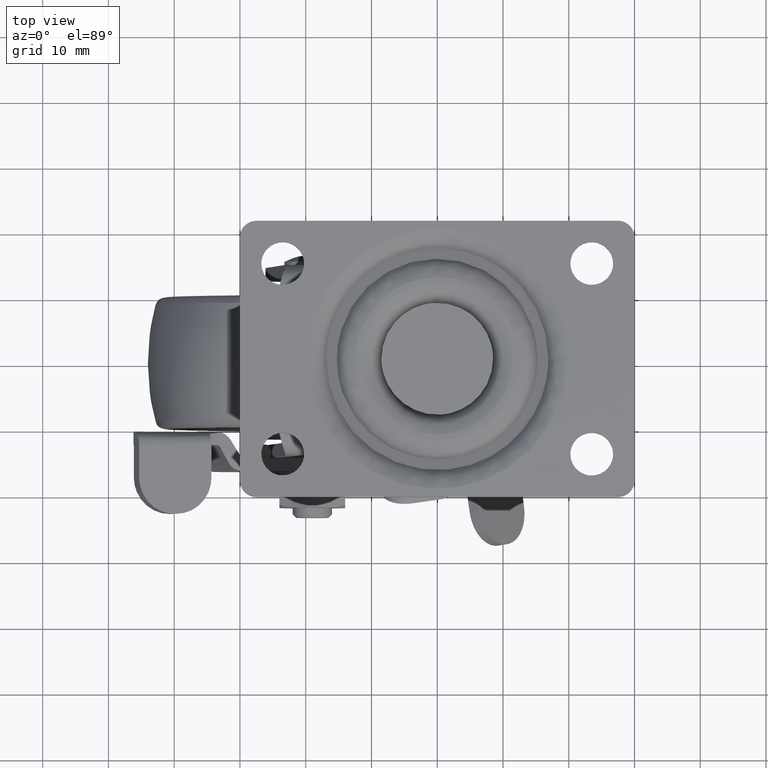
[diagram: clean part render]
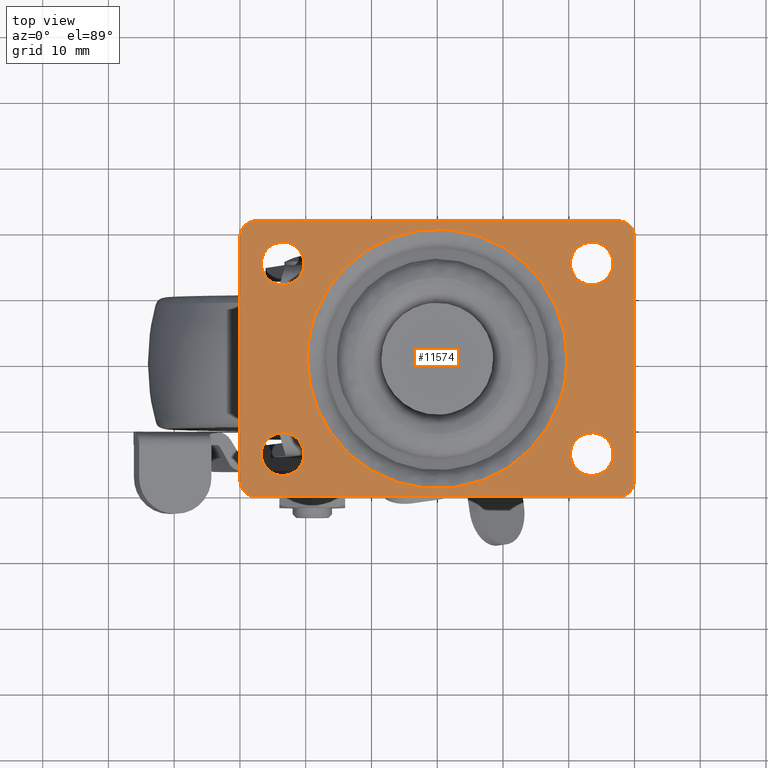
[diagram: same view with one face highlighted and labeled with its STEP entity id]
A machine part, top view. The second image highlights one B-rep face of the part: STEP entity #11574.
In plain terms, the highlighted face is a freeform B-spline surface patch.
Its self-contained STEP definition (entity closure, byte-faithful):
#9707=CARTESIAN_POINT('',(-23.698414753694671,11.256061905141561,-1.075529E-016));
#9708=VERTEX_POINT('',#9707);
#9709=CARTESIAN_POINT('',(-20.250007000000000,14.500000000000000,0.0));
#9710=VERTEX_POINT('',#9709);
#9711=CARTESIAN_POINT('',(-23.698414753694664,11.256061905141562,0.0));
#9712=CARTESIAN_POINT('',(-23.599303480823902,11.250000000000002,0.0));
#9713=CARTESIAN_POINT('',(-23.500007000000000,11.250000000000000,0.0));
#9714=CARTESIAN_POINT('',(-20.250007000000007,11.250000000000000,0.0));
#9715=CARTESIAN_POINT('',(-20.250007000000000,14.500000000000000,0.0));
#9723=(BOUNDED_CURVE()B_SPLINE_CURVE(2,(#9711,#9712,#9713,#9714,#9715),.UNSPECIFIED.,.F.,.U.)B_SPLINE_CURVE_WITH_KNOTS((3,2,3),(0.239332962230991,0.250000000000000,0.500000000000000),.UNSPECIFIED.)CURVE()GEOMETRIC_REPRESENTATION_ITEM()RATIONAL_B_SPLINE_CURVE((0.976072041649675,0.987502787890521,1.0,0.707106781186547,1.0))REPRESENTATION_ITEM(''));
#9724=EDGE_CURVE('',#9708,#9710,#9723,.T.);
#9726=CARTESIAN_POINT('',(-23.301599246305329,17.743938094858450,-1.075529E-016));
#9727=VERTEX_POINT('',#9726);
#9728=CARTESIAN_POINT('',(-20.250007000000000,14.500000000000000,0.0));
#9729=CARTESIAN_POINT('',(-20.250007000000000,17.557294717248642,0.0));
#9730=CARTESIAN_POINT('',(-23.301599246305333,17.743938094858443,0.0));
#9738=(BOUNDED_CURVE()B_SPLINE_CURVE(2,(#9728,#9729,#9730),.UNSPECIFIED.,.F.,.U.)B_SPLINE_CURVE_WITH_KNOTS((3,3),(0.500000000000000,0.739332962230990),.UNSPECIFIED.)CURVE()GEOMETRIC_REPRESENTATION_ITEM()RATIONAL_B_SPLINE_CURVE((1.0,0.719603993296027,0.976072041649674))REPRESENTATION_ITEM(''));
#9739=EDGE_CURVE('',#9710,#9727,#9738,.T.);
#9806=CARTESIAN_POINT('',(-26.750007000000000,14.500000000000000,0.0));
#9807=VERTEX_POINT('',#9806);
#9808=CARTESIAN_POINT('',(-26.750007000000000,14.500000000000000,0.0));
#9809=CARTESIAN_POINT('',(-26.750007000000000,11.442705282751366,0.0));
#9810=CARTESIAN_POINT('',(-23.698414753694671,11.256061905141557,0.0));
#9818=(BOUNDED_CURVE()B_SPLINE_CURVE(2,(#9808,#9809,#9810),.UNSPECIFIED.,.F.,.U.)B_SPLINE_CURVE_WITH_KNOTS((3,3),(0.0,0.239332962230990),.UNSPECIFIED.)CURVE()GEOMETRIC_REPRESENTATION_ITEM()RATIONAL_B_SPLINE_CURVE((1.0,0.719603993296027,0.976072041649674))REPRESENTATION_ITEM(''));
#9819=EDGE_CURVE('',#9807,#9708,#9818,.T.);
#9853=CARTESIAN_POINT('',(-23.301599246305329,17.743938094858454,0.0));
#9854=CARTESIAN_POINT('',(-23.400710519176098,17.750000000000007,0.0));
#9855=CARTESIAN_POINT('',(-23.500007000000000,17.750000000000000,0.0));
#9856=CARTESIAN_POINT('',(-26.750006999999997,17.750000000000004,0.0));
#9857=CARTESIAN_POINT('',(-26.750007000000000,14.500000000000000,0.0));
#9865=(BOUNDED_CURVE()B_SPLINE_CURVE(2,(#9853,#9854,#9855,#9856,#9857),.UNSPECIFIED.,.F.,.U.)B_SPLINE_CURVE_WITH_KNOTS((3,2,3),(0.739332962230991,0.750000000000000,1.0),.UNSPECIFIED.)CURVE()GEOMETRIC_REPRESENTATION_ITEM()RATIONAL_B_SPLINE_CURVE((0.976072041649674,0.987502787890521,1.0,0.707106781186547,1.0))REPRESENTATION_ITEM(''));
#9866=EDGE_CURVE('',#9727,#9807,#9865,.T.);
#9889=CARTESIAN_POINT('',(23.301585246305329,11.256061905141561,-1.075529E-016));
#9890=VERTEX_POINT('',#9889);
#9891=CARTESIAN_POINT('',(26.749993000000000,14.500000000000000,0.0));
#9892=VERTEX_POINT('',#9891);
#9893=CARTESIAN_POINT('',(23.301585246305322,11.256061905141557,0.0));
#9894=CARTESIAN_POINT('',(23.400696519176101,11.250000000000004,0.0));
#9895=CARTESIAN_POINT('',(23.499993000000000,11.250000000000000,0.0));
#9896=CARTESIAN_POINT('',(26.749993000000003,11.250000000000000,0.0));
#9897=CARTESIAN_POINT('',(26.749993000000000,14.500000000000000,0.0));
#9905=(BOUNDED_CURVE()B_SPLINE_CURVE(2,(#9893,#9894,#9895,#9896,#9897),.UNSPECIFIED.,.F.,.U.)B_SPLINE_CURVE_WITH_KNOTS((3,2,3),(0.239332962230990,0.250000000000000,0.500000000000000),.UNSPECIFIED.)CURVE()GEOMETRIC_REPRESENTATION_ITEM()RATIONAL_B_SPLINE_CURVE((0.976072041649674,0.987502787890520,1.0,0.707106781186547,1.0))REPRESENTATION_ITEM(''));
#9906=EDGE_CURVE('',#9890,#9892,#9905,.T.);
#9908=CARTESIAN_POINT('',(23.698400753694671,17.743938094858439,-1.075529E-016));
#9909=VERTEX_POINT('',#9908);
#9910=CARTESIAN_POINT('',(26.749993000000000,14.500000000000000,0.0));
#9911=CARTESIAN_POINT('',(26.749992999999996,17.557294717248645,0.0));
#9912=CARTESIAN_POINT('',(23.698400753694667,17.743938094858446,0.0));
#9920=(BOUNDED_CURVE()B_SPLINE_CURVE(2,(#9910,#9911,#9912),.UNSPECIFIED.,.F.,.U.)B_SPLINE_CURVE_WITH_KNOTS((3,3),(0.500000000000000,0.739332962230991),.UNSPECIFIED.)CURVE()GEOMETRIC_REPRESENTATION_ITEM()RATIONAL_B_SPLINE_CURVE((1.0,0.719603993296027,0.976072041649675))REPRESENTATION_ITEM(''));
#9921=EDGE_CURVE('',#9892,#9909,#9920,.T.);
#9988=CARTESIAN_POINT('',(20.249993000000000,14.500000000000000,0.0));
#9989=VERTEX_POINT('',#9988);
#9990=CARTESIAN_POINT('',(20.249993000000000,14.500000000000000,0.0));
#9991=CARTESIAN_POINT('',(20.249993000000003,11.442705282751362,0.0));
#9992=CARTESIAN_POINT('',(23.301585246305333,11.256061905141562,0.0));
#10000=(BOUNDED_CURVE()B_SPLINE_CURVE(2,(#9990,#9991,#9992),.UNSPECIFIED.,.F.,.U.)B_SPLINE_CURVE_WITH_KNOTS((3,3),(0.0,0.239332962230991),.UNSPECIFIED.)CURVE()GEOMETRIC_REPRESENTATION_ITEM()RATIONAL_B_SPLINE_CURVE((1.0,0.719603993296027,0.976072041649675))REPRESENTATION_ITEM(''));
#10001=EDGE_CURVE('',#9989,#9890,#10000,.T.);
#10035=CARTESIAN_POINT('',(23.698400753694667,17.743938094858443,0.0));
#10036=CARTESIAN_POINT('',(23.599289480823895,17.750000000000004,0.0));
#10037=CARTESIAN_POINT('',(23.499993000000000,17.750000000000000,0.0));
#10038=CARTESIAN_POINT('',(20.249993000000003,17.750000000000004,0.0));
#10039=CARTESIAN_POINT('',(20.249993000000000,14.500000000000000,0.0));
#10047=(BOUNDED_CURVE()B_SPLINE_CURVE(2,(#10035,#10036,#10037,#10038,#10039),.UNSPECIFIED.,.F.,.U.)B_SPLINE_CURVE_WITH_KNOTS((3,2,3),(0.739332962230990,0.750000000000000,1.0),.UNSPECIFIED.)CURVE()GEOMETRIC_REPRESENTATION_ITEM()RATIONAL_B_SPLINE_CURVE((0.976072041649674,0.987502787890520,1.0,0.707106781186547,1.0))REPRESENTATION_ITEM(''));
#10048=EDGE_CURVE('',#9909,#9989,#10047,.T.);
#10223=CARTESIAN_POINT('',(-23.698414753694671,-17.743938094858450,-1.075529E-016));
#10224=VERTEX_POINT('',#10223);
#10225=CARTESIAN_POINT('',(-20.250007000000000,-14.500000000000000,0.0));
#10226=VERTEX_POINT('',#10225);
#10227=CARTESIAN_POINT('',(-23.698414753694671,-17.743938094858454,0.0));
#10228=CARTESIAN_POINT('',(-23.599303480823892,-17.750000000000007,0.0));
#10229=CARTESIAN_POINT('',(-23.500007000000000,-17.750000000000000,0.0));
#10230=CARTESIAN_POINT('',(-20.250007000000007,-17.750000000000004,0.0));
#10231=CARTESIAN_POINT('',(-20.250007000000000,-14.500000000000000,0.0));
#10239=(BOUNDED_CURVE()B_SPLINE_CURVE(2,(#10227,#10228,#10229,#10230,#10231),.UNSPECIFIED.,.F.,.U.)B_SPLINE_CURVE_WITH_KNOTS((3,2,3),(0.239332962230990,0.250000000000000,0.500000000000000),.UNSPECIFIED.)CURVE()GEOMETRIC_REPRESENTATION_ITEM()RATIONAL_B_SPLINE_CURVE((0.976072041649674,0.987502787890521,1.0,0.707106781186547,1.0))REPRESENTATION_ITEM(''));
#10240=EDGE_CURVE('',#10224,#10226,#10239,.T.);
#10242=CARTESIAN_POINT('',(-23.301599246305329,-11.256061905141561,-1.075529E-016));
#10243=VERTEX_POINT('',#10242);
#10244=CARTESIAN_POINT('',(-20.250007000000000,-14.500000000000000,0.0));
#10245=CARTESIAN_POINT('',(-20.250007000000000,-11.442705282751369,0.0));
#10246=CARTESIAN_POINT('',(-23.301599246305333,-11.256061905141557,0.0));
#10254=(BOUNDED_CURVE()B_SPLINE_CURVE(2,(#10244,#10245,#10246),.UNSPECIFIED.,.F.,.U.)B_SPLINE_CURVE_WITH_KNOTS((3,3),(0.500000000000000,0.739332962230990),.UNSPECIFIED.)CURVE()GEOMETRIC_REPRESENTATION_ITEM()RATIONAL_B_SPLINE_CURVE((1.0,0.719603993296027,0.976072041649674))REPRESENTATION_ITEM(''));
#10255=EDGE_CURVE('',#10226,#10243,#10254,.T.);
#10322=CARTESIAN_POINT('',(-26.750007000000000,-14.500000000000000,0.0));
#10323=VERTEX_POINT('',#10322);
#10324=CARTESIAN_POINT('',(-26.750007000000000,-14.500000000000000,0.0));
#10325=CARTESIAN_POINT('',(-26.750007000000004,-17.557294717248645,0.0));
#10326=CARTESIAN_POINT('',(-23.698414753694664,-17.743938094858446,0.0));
#10334=(BOUNDED_CURVE()B_SPLINE_CURVE(2,(#10324,#10325,#10326),.UNSPECIFIED.,.F.,.U.)B_SPLINE_CURVE_WITH_KNOTS((3,3),(0.0,0.239332962230991),.UNSPECIFIED.)CURVE()GEOMETRIC_REPRESENTATION_ITEM()RATIONAL_B_SPLINE_CURVE((1.0,0.719603993296027,0.976072041649675))REPRESENTATION_ITEM(''));
#10335=EDGE_CURVE('',#10323,#10224,#10334,.T.);
#10369=CARTESIAN_POINT('',(-23.301599246305329,-11.256061905141562,0.0));
#10370=CARTESIAN_POINT('',(-23.400710519176105,-11.250000000000002,0.0));
#10371=CARTESIAN_POINT('',(-23.500007000000000,-11.250000000000000,0.0));
#10372=CARTESIAN_POINT('',(-26.750006999999997,-11.250000000000000,0.0));
#10373=CARTESIAN_POINT('',(-26.750007000000000,-14.500000000000000,0.0));
#10381=(BOUNDED_CURVE()B_SPLINE_CURVE(2,(#10369,#10370,#10371,#10372,#10373),.UNSPECIFIED.,.F.,.U.)B_SPLINE_CURVE_WITH_KNOTS((3,2,3),(0.739332962230991,0.750000000000000,1.0),.UNSPECIFIED.)CURVE()GEOMETRIC_REPRESENTATION_ITEM()RATIONAL_B_SPLINE_CURVE((0.976072041649675,0.987502787890521,1.0,0.707106781186547,1.0))REPRESENTATION_ITEM(''));
#10382=EDGE_CURVE('',#10243,#10323,#10381,.T.);
#10405=CARTESIAN_POINT('',(23.301585246305329,-17.743938094858450,-1.075529E-016));
#10406=VERTEX_POINT('',#10405);
#10407=CARTESIAN_POINT('',(26.749993000000000,-14.500000000000000,0.0));
#10408=VERTEX_POINT('',#10407);
#10409=CARTESIAN_POINT('',(23.301585246305333,-17.743938094858454,0.0));
#10410=CARTESIAN_POINT('',(23.400696519176098,-17.750000000000007,0.0));
#10411=CARTESIAN_POINT('',(23.499993000000000,-17.750000000000000,0.0));
#10412=CARTESIAN_POINT('',(26.749993000000003,-17.750000000000004,0.0));
#10413=CARTESIAN_POINT('',(26.749993000000000,-14.500000000000000,0.0));
#10421=(BOUNDED_CURVE()B_SPLINE_CURVE(2,(#10409,#10410,#10411,#10412,#10413),.UNSPECIFIED.,.F.,.U.)B_SPLINE_CURVE_WITH_KNOTS((3,2,3),(0.239332962230990,0.250000000000000,0.500000000000000),.UNSPECIFIED.)CURVE()GEOMETRIC_REPRESENTATION_ITEM()RATIONAL_B_SPLINE_CURVE((0.976072041649674,0.987502787890521,1.0,0.707106781186547,1.0))REPRESENTATION_ITEM(''));
#10422=EDGE_CURVE('',#10406,#10408,#10421,.T.);
#10424=CARTESIAN_POINT('',(23.698400753694671,-11.256061905141561,-1.075529E-016));
#10425=VERTEX_POINT('',#10424);
#10426=CARTESIAN_POINT('',(26.749993000000000,-14.500000000000000,0.0));
#10427=CARTESIAN_POINT('',(26.749992999999996,-11.442705282751362,0.0));
#10428=CARTESIAN_POINT('',(23.698400753694667,-11.256061905141562,0.0));
#10436=(BOUNDED_CURVE()B_SPLINE_CURVE(2,(#10426,#10427,#10428),.UNSPECIFIED.,.F.,.U.)B_SPLINE_CURVE_WITH_KNOTS((3,3),(0.500000000000000,0.739332962230991),.UNSPECIFIED.)CURVE()GEOMETRIC_REPRESENTATION_ITEM()RATIONAL_B_SPLINE_CURVE((1.0,0.719603993296027,0.976072041649675))REPRESENTATION_ITEM(''));
#10437=EDGE_CURVE('',#10408,#10425,#10436,.T.);
#10504=CARTESIAN_POINT('',(20.249993000000000,-14.500000000000000,0.0));
#10505=VERTEX_POINT('',#10504);
#10506=CARTESIAN_POINT('',(20.249993000000000,-14.500000000000000,0.0));
#10507=CARTESIAN_POINT('',(20.249993000000003,-17.557294717248645,0.0));
#10508=CARTESIAN_POINT('',(23.301585246305336,-17.743938094858450,0.0));
#10516=(BOUNDED_CURVE()B_SPLINE_CURVE(2,(#10506,#10507,#10508),.UNSPECIFIED.,.F.,.U.)B_SPLINE_CURVE_WITH_KNOTS((3,3),(0.0,0.239332962230991),.UNSPECIFIED.)CURVE()GEOMETRIC_REPRESENTATION_ITEM()RATIONAL_B_SPLINE_CURVE((1.0,0.719603993296027,0.976072041649674))REPRESENTATION_ITEM(''));
#10517=EDGE_CURVE('',#10505,#10406,#10516,.T.);
#10551=CARTESIAN_POINT('',(23.698400753694667,-11.256061905141557,0.0));
#10552=CARTESIAN_POINT('',(23.599289480823895,-11.250000000000004,0.0));
#10553=CARTESIAN_POINT('',(23.499993000000000,-11.250000000000000,0.0));
#10554=CARTESIAN_POINT('',(20.249993000000003,-11.250000000000000,0.0));
#10555=CARTESIAN_POINT('',(20.249993000000000,-14.500000000000000,0.0));
#10563=(BOUNDED_CURVE()B_SPLINE_CURVE(2,(#10551,#10552,#10553,#10554,#10555),.UNSPECIFIED.,.F.,.U.)B_SPLINE_CURVE_WITH_KNOTS((3,2,3),(0.739332962230990,0.750000000000000,1.0),.UNSPECIFIED.)CURVE()GEOMETRIC_REPRESENTATION_ITEM()RATIONAL_B_SPLINE_CURVE((0.976072041649674,0.987502787890520,1.0,0.707106781186547,1.0))REPRESENTATION_ITEM(''));
#10564=EDGE_CURVE('',#10425,#10505,#10563,.T.);
#11295=CARTESIAN_POINT('',(-18.603714728898559,6.566001775481418,-4.318939E-016));
#11296=VERTEX_POINT('',#11295);
#11310=CARTESIAN_POINT('',(-19.728421042998480,0.0,0.0));
#11311=VERTEX_POINT('',#11310);
#11312=CARTESIAN_POINT('',(-19.728421042998480,0.0,0.0));
#11313=CARTESIAN_POINT('',(-19.728421042113318,3.379327718902806,-2.159470E-016));
#11314=CARTESIAN_POINT('',(-18.603714728898563,6.566001775481418,-4.318939E-016));
#11322=(BOUNDED_CURVE()B_SPLINE_CURVE(2,(#11312,#11313,#11314),.UNSPECIFIED.,.F.,.U.)B_SPLINE_CURVE_WITH_KNOTS((3,3),(0.0,0.056548785516613),.UNSPECIFIED.)CURVE()GEOMETRIC_REPRESENTATION_ITEM()RATIONAL_B_SPLINE_CURVE((1.0,0.933748976760191,0.897469272747935))REPRESENTATION_ITEM(''));
#11323=EDGE_CURVE('',#11311,#11296,#11322,.T.);
#11325=CARTESIAN_POINT('',(18.603700728898708,-6.566001775481416,-4.318939E-016));
#11326=VERTEX_POINT('',#11325);
#11327=CARTESIAN_POINT('',(18.603700728898708,-6.566001775481416,-4.318939E-016));
#11328=CARTESIAN_POINT('',(18.244413590398189,-7.584264544487866,-4.298704E-016));
#11329=CARTESIAN_POINT('',(17.549999802215460,-9.133072667112105,-4.251733E-016));
#11330=CARTESIAN_POINT('',(16.288137169008120,-11.191161651307580,-4.152198E-016));
#11331=CARTESIAN_POINT('',(15.108164758702291,-12.739266111244939,-4.052065E-016));
#11332=CARTESIAN_POINT('',(13.753665734227811,-14.185876974421790,-3.930925E-016));
#11333=CARTESIAN_POINT('',(12.104656209688031,-15.639492890729841,-3.777679E-016));
#11334=CARTESIAN_POINT('',(9.874272213031290,-17.172293906888530,-3.562281E-016));
#11335=CARTESIAN_POINT('',(7.267266563482649,-18.419079100250819,-3.300296E-016));
#11336=CARTESIAN_POINT('',(4.716345590491609,-19.203371855093160,-3.035777E-016));
#11337=CARTESIAN_POINT('',(2.198693870873639,-19.663214878513489,-2.768817E-016));
#11338=CARTESIAN_POINT('',(-0.253010151596587,-19.784139420555409,-2.502721E-016));
#11339=CARTESIAN_POINT('',(-3.162973034693894,-19.544822715606870,-2.179710E-016));
#11340=CARTESIAN_POINT('',(-5.874277588916657,-18.918261236657440,-1.871183E-016));
#11341=CARTESIAN_POINT('',(-8.283058834831120,-17.947360323312520,-1.589314E-016));
#11342=CARTESIAN_POINT('',(-10.158513076144070,-16.947425982871469,-1.365279E-016));
#11343=CARTESIAN_POINT('',(-11.840786327788120,-15.831722990327689,-1.160219E-016));
#11344=CARTESIAN_POINT('',(-13.360162212242701,-14.557631541771370,-9.700192E-017));
#11345=CARTESIAN_POINT('',(-14.799975430977350,-13.094014373951140,-7.849751E-017));
#11346=CARTESIAN_POINT('',(-16.067607279690709,-11.522228427693010,-6.167499E-017));
#11347=CARTESIAN_POINT('',(-17.261821271702811,-9.633145560929709,-4.506117E-017));
#11348=CARTESIAN_POINT('',(-18.400785133282799,-7.301021857156676,-2.822144E-017));
#11349=CARTESIAN_POINT('',(-19.432216818546021,-4.103072138821763,-1.093536E-017));
#11350=CARTESIAN_POINT('',(-19.728696388873232,-1.475707258151726,-2.763885E-018));
#11351=CARTESIAN_POINT('',(-19.728421042998480,0.0,0.0));
#11352=B_SPLINE_CURVE_WITH_KNOTS('',3,(#11327,#11328,#11329,#11330,#11331,#11332,#11333,#11334,#11335,#11336,#11337,#11338,#11339,#11340,#11341,#11342,#11343,#11344,#11345,#11346,#11347,#11348,#11349,#11350,#11351),.UNSPECIFIED.,.F.,.U.,(4,1,1,1,1,1,1,1,1,1,1,1,1,1,1,1,1,1,1,1,1,1,4),(0.000000092125966,3.239351699329141,5.074982633505385,7.234557563773677,9.070200557534804,11.013823078762369,13.821265459577329,17.168594805672370,19.652114301460710,21.811711435700090,24.835004906284912,26.994633271431141,30.557904063580811,33.149398375802193,34.769084461442020,36.928653577819659,39.196212864124732,40.707918233981388,43.083446375874630,45.243036390165322,47.402593826066457,50.857939310464559,55.285016440371237),.UNSPECIFIED.);
#11353=EDGE_CURVE('',#11326,#11311,#11352,.T.);
#11402=CARTESIAN_POINT('',(19.728407042998619,0.0,0.0));
#11403=VERTEX_POINT('',#11402);
#11404=CARTESIAN_POINT('',(19.728407042998619,0.0,0.0));
#11405=CARTESIAN_POINT('',(19.728407042113460,-3.379327718902804,-2.159470E-016));
#11406=CARTESIAN_POINT('',(18.603700728898712,-6.566001775481416,-4.318939E-016));
#11414=(BOUNDED_CURVE()B_SPLINE_CURVE(2,(#11404,#11405,#11406),.UNSPECIFIED.,.F.,.U.)B_SPLINE_CURVE_WITH_KNOTS((3,3),(0.500000000000000,0.556548785516613),.UNSPECIFIED.)CURVE()GEOMETRIC_REPRESENTATION_ITEM()RATIONAL_B_SPLINE_CURVE((1.0,0.933748976760191,0.897469272747935))REPRESENTATION_ITEM(''));
#11415=EDGE_CURVE('',#11403,#11326,#11414,.T.);
#11417=CARTESIAN_POINT('',(-18.603714728898559,6.566001775481418,-4.318939E-016));
#11418=CARTESIAN_POINT('',(-18.280333272065288,7.482427348088656,-4.300725E-016));
#11419=CARTESIAN_POINT('',(-17.555668496788009,9.135079005748541,-4.252389E-016));
#11420=CARTESIAN_POINT('',(-16.179597085576400,11.379509574840950,-4.143847E-016));
#11421=CARTESIAN_POINT('',(-14.758188817141329,13.152015078237490,-4.021494E-016));
#11422=CARTESIAN_POINT('',(-12.974790129641910,14.935602970566670,-3.859725E-016));
#11423=CARTESIAN_POINT('',(-10.658210401246610,16.721839608945960,-3.639644E-016));
#11424=CARTESIAN_POINT('',(-7.710887564823213,18.262504358389350,-3.345917E-016));
#11425=CARTESIAN_POINT('',(-4.893658597012890,19.171011925268271,-3.054578E-016));
#11426=CARTESIAN_POINT('',(-2.056857858971124,19.689154131442290,-2.753777E-016));
#11427=CARTESIAN_POINT('',(0.831475620540786,19.799970449045780,-2.439698E-016));
#11428=CARTESIAN_POINT('',(3.624867756201037,19.446454900310719,-2.127305E-016));
#11429=CARTESIAN_POINT('',(5.963206245968144,18.844990434231491,-1.860074E-016));
#11430=CARTESIAN_POINT('',(8.157660578473223,18.022860099708630,-1.604455E-016));
#11431=CARTESIAN_POINT('',(10.230334544373260,16.925040179430269,-1.356996E-016));
#11432=CARTESIAN_POINT('',(12.390327513868121,15.423402044283129,-1.092409E-016));
#11433=CARTESIAN_POINT('',(14.316892774583710,13.677963750616311,-8.488006E-017));
#11434=CARTESIAN_POINT('',(15.986928451985939,11.641531857921819,-6.278163E-017));
#11435=CARTESIAN_POINT('',(17.282860788615409,9.603940510167499,-4.477596E-017));
#11436=CARTESIAN_POINT('',(18.352987892863791,7.397368024015512,-2.892512E-017));
#11437=CARTESIAN_POINT('',(19.175224174913900,4.894848569355426,-1.523280E-017));
#11438=CARTESIAN_POINT('',(19.635227276592619,2.375506195020151,-5.473934E-018));
#11439=CARTESIAN_POINT('',(19.728422494685859,0.755843866281501,-1.417011E-018));
#11440=CARTESIAN_POINT('',(19.728407042998619,0.0,0.0));
#11441=B_SPLINE_CURVE_WITH_KNOTS('',3,(#11417,#11418,#11419,#11420,#11421,#11422,#11423,#11424,#11425,#11426,#11427,#11428,#11429,#11430,#11431,#11432,#11433,#11434,#11435,#11436,#11437,#11438,#11439,#11440),.UNSPECIFIED.,.F.,.U.,(4,1,1,1,1,1,1,1,1,1,1,1,1,1,1,1,1,1,1,1,1,4),(0.000000091829051,2.915416521669101,5.398919881735594,7.882431730822660,9.718074670812449,12.957445313997029,16.628729935425891,19.652114301278448,21.811711435529549,25.266949234867958,28.290359688764340,30.233968557882591,32.501524085612637,35.308967206107383,37.252590880743469,40.383981163646567,43.083446375816983,45.135049554516783,47.618573024832472,50.426020544507047,53.017482056356627,55.285016440371727),.UNSPECIFIED.);
#11442=EDGE_CURVE('',#11296,#11403,#11441,.T.);
#11449=CARTESIAN_POINT('',(-32.997006883708472,23.097899918595861,0.0));
#11450=CARTESIAN_POINT('',(32.996994493033782,23.097899918595861,0.0));
#11451=CARTESIAN_POINT('',(-32.997006883708472,-23.097901045123638,0.0));
#11452=CARTESIAN_POINT('',(32.996994493033782,-23.097901045123638,0.0));
#11453=B_SPLINE_SURFACE_WITH_KNOTS('',1,1,((#11449,#11451),(#11450,#11452)),.UNSPECIFIED.,.F.,.F.,.U.,(2,2),(2,2),(0.0,65.994001376742233),(0.0,46.195800963719492),.UNSPECIFIED.);
#11454=CARTESIAN_POINT('',(29.999993000000000,18.500000000000000,0.0));
#11455=VERTEX_POINT('',#11454);
#11456=CARTESIAN_POINT('',(27.499993000000000,21.0,0.0));
#11457=VERTEX_POINT('',#11456);
#11458=CARTESIAN_POINT('',(29.999993000000000,18.500000000000000,0.0));
#11459=CARTESIAN_POINT('',(29.999993000000000,21.000000000000004,0.0));
#11460=CARTESIAN_POINT('',(27.499993000000000,21.0,0.0));
#11468=(BOUNDED_CURVE()B_SPLINE_CURVE(2,(#11458,#11459,#11460),.UNSPECIFIED.,.F.,.U.)CURVE()GEOMETRIC_REPRESENTATION_ITEM()QUASI_UNIFORM_CURVE()RATIONAL_B_SPLINE_CURVE((1.0,0.707106781186548,1.0))REPRESENTATION_ITEM(''));
#11469=EDGE_CURVE('',#11455,#11457,#11468,.T.);
#11470=ORIENTED_EDGE('',*,*,#11469,.T.);
#11471=CARTESIAN_POINT('',(-27.500007000000100,21.0,0.0));
#11472=VERTEX_POINT('',#11471);
#11473=CARTESIAN_POINT('',(27.499993000000000,21.0,0.0));
#11474=CARTESIAN_POINT('',(-27.500007000000100,21.0,0.0));
#11475=QUASI_UNIFORM_CURVE('',1,(#11473,#11474),.UNSPECIFIED.,.F.,.U.);
#11476=EDGE_CURVE('',#11457,#11472,#11475,.T.);
#11477=ORIENTED_EDGE('',*,*,#11476,.T.);
#11478=CARTESIAN_POINT('',(-30.000007000000100,18.500000000000000,0.0));
#11479=VERTEX_POINT('',#11478);
#11480=CARTESIAN_POINT('',(-27.500007000000100,21.0,0.0));
#11481=CARTESIAN_POINT('',(-30.000007000000107,21.000000000000004,0.0));
#11482=CARTESIAN_POINT('',(-30.000007000000100,18.500000000000000,0.0));
#11490=(BOUNDED_CURVE()B_SPLINE_CURVE(2,(#11480,#11481,#11482),.UNSPECIFIED.,.F.,.U.)CURVE()GEOMETRIC_REPRESENTATION_ITEM()QUASI_UNIFORM_CURVE()RATIONAL_B_SPLINE_CURVE((1.0,0.707106781186548,1.0))REPRESENTATION_ITEM(''));
#11491=EDGE_CURVE('',#11472,#11479,#11490,.T.);
#11492=ORIENTED_EDGE('',*,*,#11491,.T.);
#11493=CARTESIAN_POINT('',(-30.000007000000000,-18.500000000000000,0.0));
#11494=VERTEX_POINT('',#11493);
#11495=CARTESIAN_POINT('',(-30.000007000000100,18.500000000000000,0.0));
#11496=CARTESIAN_POINT('',(-30.000007000000000,-18.500000000000000,0.0));
#11497=QUASI_UNIFORM_CURVE('',1,(#11495,#11496),.UNSPECIFIED.,.F.,.U.);
#11498=EDGE_CURVE('',#11479,#11494,#11497,.T.);
#11499=ORIENTED_EDGE('',*,*,#11498,.T.);
#11500=CARTESIAN_POINT('',(-27.500007000000100,-21.0,0.0));
#11501=VERTEX_POINT('',#11500);
#11502=CARTESIAN_POINT('',(-30.000007000000100,-18.500000000000000,0.0));
#11503=CARTESIAN_POINT('',(-30.000007000000107,-21.000000000000004,0.0));
#11504=CARTESIAN_POINT('',(-27.500007000000100,-21.0,0.0));
#11512=(BOUNDED_CURVE()B_SPLINE_CURVE(2,(#11502,#11503,#11504),.UNSPECIFIED.,.F.,.U.)CURVE()GEOMETRIC_REPRESENTATION_ITEM()QUASI_UNIFORM_CURVE()RATIONAL_B_SPLINE_CURVE((1.0,0.707106781186548,1.0))REPRESENTATION_ITEM(''));
#11513=EDGE_CURVE('',#11494,#11501,#11512,.T.);
#11514=ORIENTED_EDGE('',*,*,#11513,.T.);
#11515=CARTESIAN_POINT('',(27.499993000000000,-21.0,0.0));
#11516=VERTEX_POINT('',#11515);
#11517=CARTESIAN_POINT('',(-27.500007000000100,-21.0,0.0));
#11518=CARTESIAN_POINT('',(27.499993000000000,-21.0,0.0));
#11519=QUASI_UNIFORM_CURVE('',1,(#11517,#11518),.UNSPECIFIED.,.F.,.U.);
#11520=EDGE_CURVE('',#11501,#11516,#11519,.T.);
#11521=ORIENTED_EDGE('',*,*,#11520,.T.);
#11522=CARTESIAN_POINT('',(29.999993000000000,-18.500000000000000,0.0));
#11523=VERTEX_POINT('',#11522);
#11524=CARTESIAN_POINT('',(27.499993000000000,-21.0,0.0));
#11525=CARTESIAN_POINT('',(29.999993000000000,-21.000000000000004,0.0));
#11526=CARTESIAN_POINT('',(29.999993000000000,-18.500000000000000,0.0));
#11534=(BOUNDED_CURVE()B_SPLINE_CURVE(2,(#11524,#11525,#11526),.UNSPECIFIED.,.F.,.U.)CURVE()GEOMETRIC_REPRESENTATION_ITEM()QUASI_UNIFORM_CURVE()RATIONAL_B_SPLINE_CURVE((1.0,0.707106781186548,1.0))REPRESENTATION_ITEM(''));
#11535=EDGE_CURVE('',#11516,#11523,#11534,.T.);
#11536=ORIENTED_EDGE('',*,*,#11535,.T.);
#11537=CARTESIAN_POINT('',(29.999993000000000,-18.500000000000000,0.0));
#11538=CARTESIAN_POINT('',(29.999993000000000,18.500000000000000,0.0));
#11539=QUASI_UNIFORM_CURVE('',1,(#11537,#11538),.UNSPECIFIED.,.F.,.U.);
#11540=EDGE_CURVE('',#11523,#11455,#11539,.T.);
#11541=ORIENTED_EDGE('',*,*,#11540,.T.);
#11542=EDGE_LOOP('',(#11470,#11477,#11492,#11499,#11514,#11521,#11536,#11541));
#11543=FACE_OUTER_BOUND('',#11542,.T.);
#11544=ORIENTED_EDGE('',*,*,#11323,.T.);
#11545=ORIENTED_EDGE('',*,*,#11442,.T.);
#11546=ORIENTED_EDGE('',*,*,#11415,.T.);
#11547=ORIENTED_EDGE('',*,*,#11353,.T.);
#11548=EDGE_LOOP('',(#11544,#11545,#11546,#11547));
#11549=FACE_BOUND('',#11548,.T.);
#11550=ORIENTED_EDGE('',*,*,#10437,.F.);
#11551=ORIENTED_EDGE('',*,*,#10422,.F.);
#11552=ORIENTED_EDGE('',*,*,#10517,.F.);
#11553=ORIENTED_EDGE('',*,*,#10564,.F.);
#11554=EDGE_LOOP('',(#11550,#11551,#11552,#11553));
#11555=FACE_BOUND('',#11554,.T.);
#11556=ORIENTED_EDGE('',*,*,#10255,.F.);
#11557=ORIENTED_EDGE('',*,*,#10240,.F.);
#11558=ORIENTED_EDGE('',*,*,#10335,.F.);
#11559=ORIENTED_EDGE('',*,*,#10382,.F.);
#11560=EDGE_LOOP('',(#11556,#11557,#11558,#11559));
#11561=FACE_BOUND('',#11560,.T.);
#11562=ORIENTED_EDGE('',*,*,#9921,.F.);
#11563=ORIENTED_EDGE('',*,*,#9906,.F.);
#11564=ORIENTED_EDGE('',*,*,#10001,.F.);
#11565=ORIENTED_EDGE('',*,*,#10048,.F.);
#11566=EDGE_LOOP('',(#11562,#11563,#11564,#11565));
#11567=FACE_BOUND('',#11566,.T.);
#11568=ORIENTED_EDGE('',*,*,#9739,.F.);
#11569=ORIENTED_EDGE('',*,*,#9724,.F.);
#11570=ORIENTED_EDGE('',*,*,#9819,.F.);
#11571=ORIENTED_EDGE('',*,*,#9866,.F.);
#11572=EDGE_LOOP('',(#11568,#11569,#11570,#11571));
#11573=FACE_BOUND('',#11572,.T.);
#11574=ADVANCED_FACE('',(#11543,#11549,#11555,#11561,#11567,#11573),#11453,.F.);